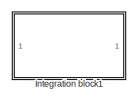
[diagram: root canvas - part 1/4, top right region]
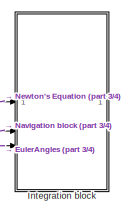
[diagram: root canvas - part 2/4, middle right region]
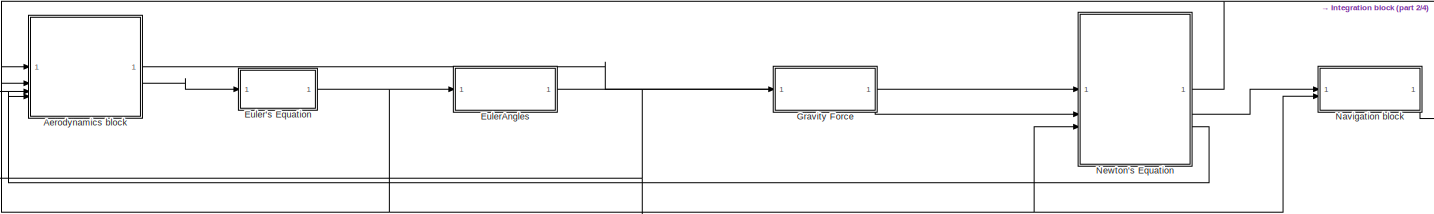
[diagram: root canvas - part 3/4, full width, middle band]
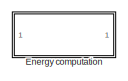
[diagram: root canvas - part 4/4, bottom right region]
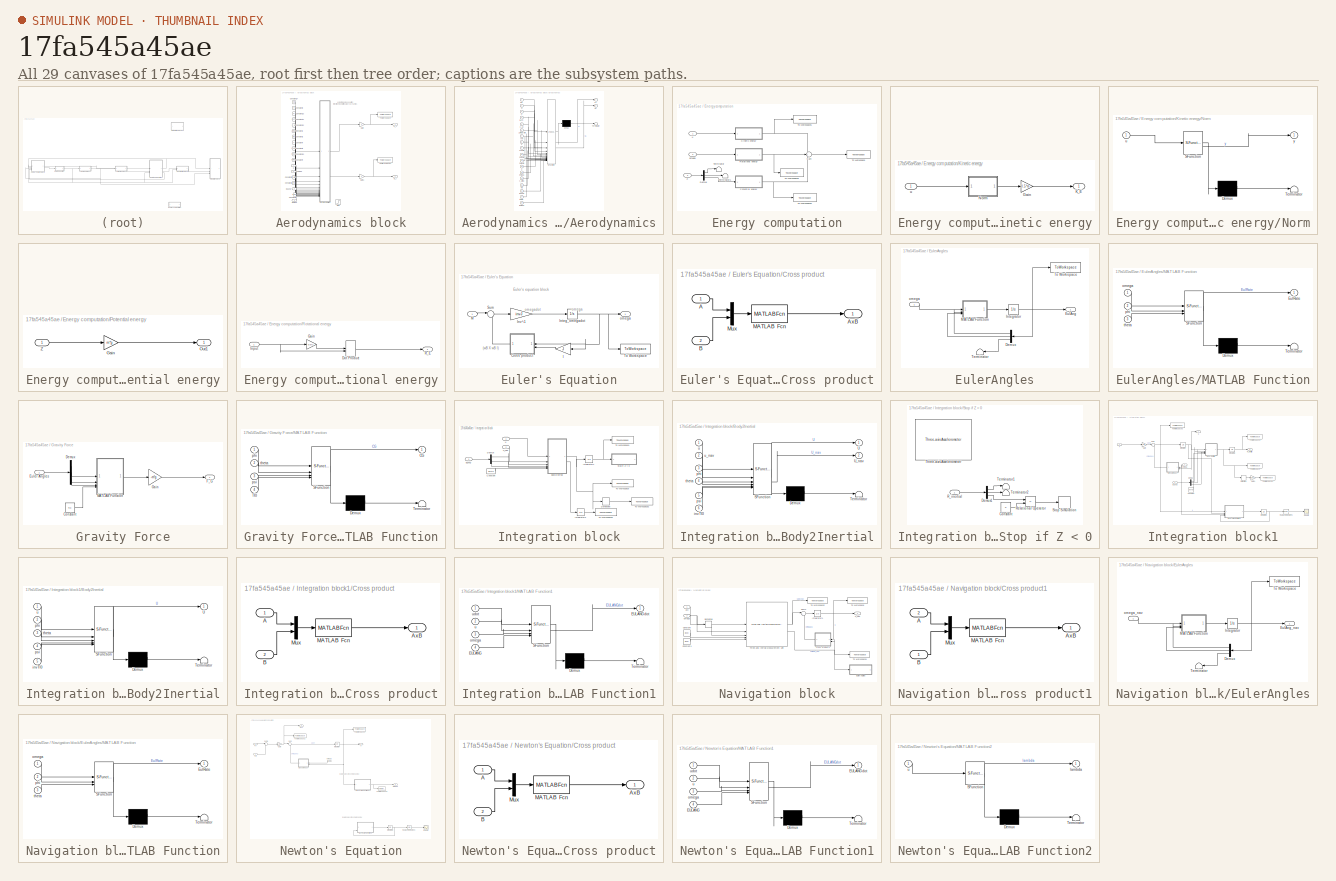
[diagram: thumbnail index - all 29 canvases of the model, root first then tree order]
MODEL slx_17fa545a45ae
KIND model
CONFIG AbsTol = auto
CONFIG EnableMultiTasking = off
CONFIG FixedStep = dt
CONFIG MaxStep = auto
CONFIG MinStep = auto
CONFIG RelTol = 1e-3
CONFIG SampleTimeConstraint = Unconstrained
CONFIG SolverName = ode4
CONFIG StartTime = 0.0
CONFIG StopTime = t
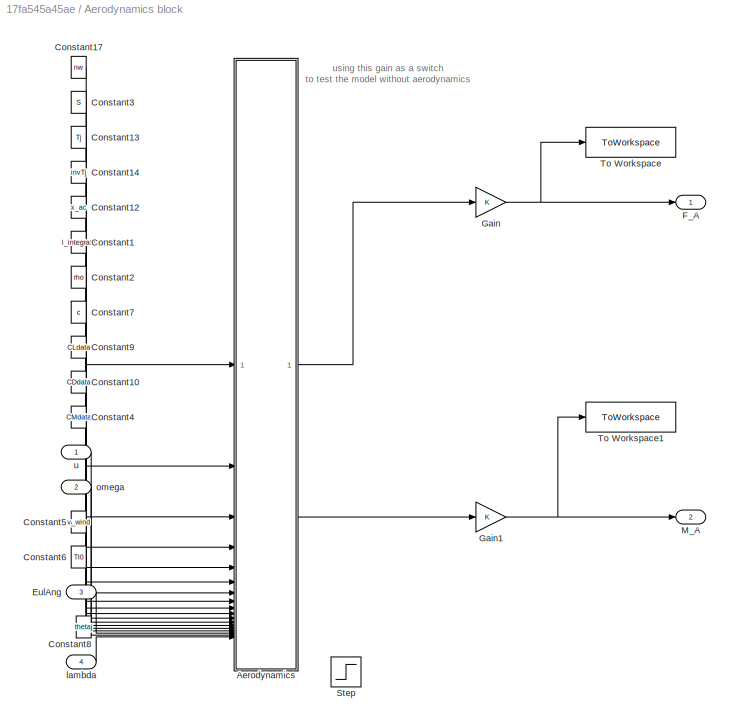
BLOCK [SubSystem] Aerodynamics block
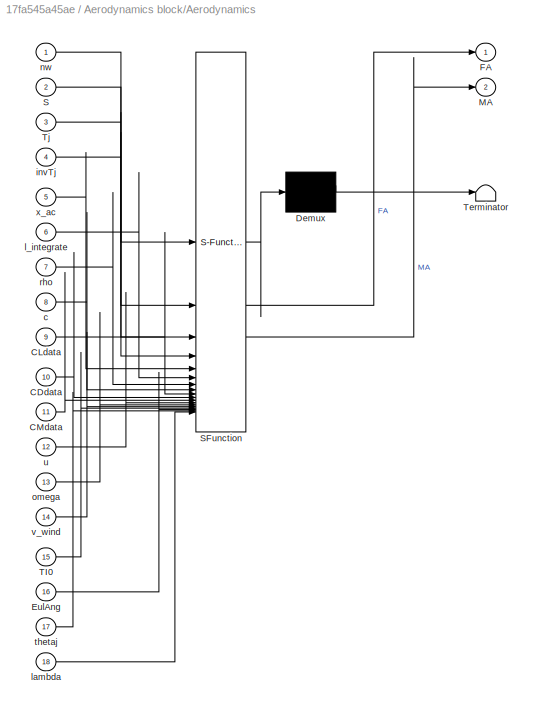
BLOCK [SubSystem] Aerodynamics block/Aerodynamics
  ErrorFcn = Stateflow.Translate.translate
  LibrarySourceBlock = simulink/User-Defined\nFunctions/MATLAB Function
  PermitHierarchicalResolution = ExplicitOnly
  SFBlockType = MATLAB Function
  TreatAsAtomicUnit = on
BLOCK [Demux] Aerodynamics block/Aerodynamics/ Demux 
  Outputs = 1
BLOCK [S-Function] Aerodynamics block/Aerodynamics/ SFunction 
  EnableBusSupport = on
  FunctionName = sf_sfun
  PortCounts = [18 3]
  SFcnIsStateOwnerBlock = off
  SFunctionDeploymentMode = off
  Tag = Stateflow S-Function 1
BLOCK [Terminator] Aerodynamics block/Aerodynamics/ Terminator 
BLOCK [Inport] Aerodynamics block/Aerodynamics/CDdata
  Port = 10
BLOCK [Inport] Aerodynamics block/Aerodynamics/CLdata
  Port = 9
BLOCK [Inport] Aerodynamics block/Aerodynamics/CMdata
  Port = 11
BLOCK [Inport] Aerodynamics block/Aerodynamics/EulAng
  Port = 16
BLOCK [Outport] Aerodynamics block/Aerodynamics/FA
BLOCK [Outport] Aerodynamics block/Aerodynamics/MA
  Port = 2
BLOCK [Inport] Aerodynamics block/Aerodynamics/S
  Port = 2
BLOCK [Inport] Aerodynamics block/Aerodynamics/TI0
  Port = 15
BLOCK [Inport] Aerodynamics block/Aerodynamics/Tj
  Port = 3
BLOCK [Inport] Aerodynamics block/Aerodynamics/c
  Port = 8
BLOCK [Inport] Aerodynamics block/Aerodynamics/invTj
  Port = 4
BLOCK [Inport] Aerodynamics block/Aerodynamics/l_integrate
  Port = 6
BLOCK [Inport] Aerodynamics block/Aerodynamics/lambda
  Port = 18
BLOCK [Inport] Aerodynamics block/Aerodynamics/nw
BLOCK [Inport] Aerodynamics block/Aerodynamics/omega
  Port = 13
BLOCK [Inport] Aerodynamics block/Aerodynamics/rho
  Port = 7
BLOCK [Inport] Aerodynamics block/Aerodynamics/thetaj
  Port = 17
BLOCK [Inport] Aerodynamics block/Aerodynamics/u
  Port = 12
BLOCK [Inport] Aerodynamics block/Aerodynamics/v_wind
  Port = 14
BLOCK [Inport] Aerodynamics block/Aerodynamics/x_ac
  Port = 5
BLOCK [Constant] Aerodynamics block/Constant1
  Value = l_integrate
BLOCK [Constant] Aerodynamics block/Constant10
  Value = CDdata
BLOCK [Constant] Aerodynamics block/Constant12
  Value = x_ac
BLOCK [Constant] Aerodynamics block/Constant13
  Value = Tj
BLOCK [Constant] Aerodynamics block/Constant14
  Value = invTj
BLOCK [Constant] Aerodynamics block/Constant17
  Value = nw
BLOCK [Constant] Aerodynamics block/Constant2
  Value = rho
BLOCK [Constant] Aerodynamics block/Constant3
  Value = S
BLOCK [Constant] Aerodynamics block/Constant4
  Value = CMdata
BLOCK [Constant] Aerodynamics block/Constant5
  Value = v_wind
BLOCK [Constant] Aerodynamics block/Constant6
  Value = TI0
BLOCK [Constant] Aerodynamics block/Constant7
  Value = c
BLOCK [Constant] Aerodynamics block/Constant8
  Value = thetaj
BLOCK [Constant] Aerodynamics block/Constant9
  Value = CLdata
BLOCK [Inport] Aerodynamics block/EulAng
  Port = 3
BLOCK [Outport] Aerodynamics block/F_A
BLOCK [Gain] Aerodynamics block/Gain
BLOCK [Gain] Aerodynamics block/Gain1
BLOCK [Outport] Aerodynamics block/M_A
  Port = 2
BLOCK [Step] Aerodynamics block/Step
  After = delta_theta
  Commented = on
  SampleTime = 0
  Time = t_action
  VectorParams1D = off
BLOCK [ToWorkspace] Aerodynamics block/To Workspace
  FixptAsFi = on
  MaxDataPoints = inf
  SampleTime = -1
  VariableName = FA
BLOCK [ToWorkspace] Aerodynamics block/To Workspace1
  FixptAsFi = on
  MaxDataPoints = inf
  SampleTime = -1
  VariableName = MA
BLOCK [Inport] Aerodynamics block/lambda
  Port = 4
BLOCK [Inport] Aerodynamics block/omega
  Port = 2
BLOCK [Inport] Aerodynamics block/u
BLOCK [SubSystem] Energy computation
  Commented = on
BLOCK [Demux] Energy computation/Demux
  Outputs = 3
BLOCK [SubSystem] Energy computation/Kinetic energy
BLOCK [Gain] Energy computation/Kinetic energy/Gain
  Gain = 0.5*m
BLOCK [Outport] Energy computation/Kinetic energy/K_E
BLOCK [SubSystem] Energy computation/Kinetic energy/Norm
  ErrorFcn = Stateflow.Translate.translate
  LibrarySourceBlock = simulink/User-Defined\nFunctions/MATLAB Function
  PermitHierarchicalResolution = ExplicitOnly
  SFBlockType = MATLAB Function
  TreatAsAtomicUnit = on
BLOCK [Demux] Energy computation/Kinetic energy/Norm/ Demux 
  Outputs = 1
BLOCK [S-Function] Energy computation/Kinetic energy/Norm/ SFunction 
  EnableBusSupport = on
  FunctionName = sf_sfun
  PortCounts = [1 2]
  SFcnIsStateOwnerBlock = off
  SFunctionDeploymentMode = off
  Tag = Stateflow S-Function 5
BLOCK [Terminator] Energy computation/Kinetic energy/Norm/ Terminator 
BLOCK [Inport] Energy computation/Kinetic energy/Norm/u
BLOCK [Outport] Energy computation/Kinetic energy/Norm/y
BLOCK [Inport] Energy computation/Kinetic energy/u
BLOCK [SubSystem] Energy computation/Potential energy
BLOCK [Gain] Energy computation/Potential energy/Gain
  Gain = m*g
BLOCK [Outport] Energy computation/Potential energy/Out1
BLOCK [Inport] Energy computation/Potential energy/Z
BLOCK [SubSystem] Energy computation/Rotational energy
BLOCK [DotProduct] Energy computation/Rotational energy/Dot Product
  OutDataTypeStr = Inherit: Inherit via internal rule
BLOCK [Gain] Energy computation/Rotational energy/Gain
  Gain = 0.5*J
  Multiplication = Matrix(u*K)
BLOCK [Inport] Energy computation/Rotational energy/Input
BLOCK [Outport] Energy computation/Rotational energy/R_E
BLOCK [Sum] Energy computation/Sum
  Inputs = +++
BLOCK [Terminator] Energy computation/Terminator
BLOCK [Terminator] Energy computation/Terminator1
BLOCK [ToWorkspace] Energy computation/To Workspace
  FixptAsFi = on
  MaxDataPoints = inf
  SampleTime = -1
  SaveFormat = Timeseries
  VariableName = E
BLOCK [ToWorkspace] Energy computation/To Workspace1
  FixptAsFi = on
  MaxDataPoints = inf
  SampleTime = -1
  SaveFormat = Timeseries
  VariableName = K_E
BLOCK [ToWorkspace] Energy computation/To Workspace2
  FixptAsFi = on
  MaxDataPoints = inf
  SampleTime = -1
  SaveFormat = Timeseries
  VariableName = P_E
BLOCK [ToWorkspace] Energy computation/To Workspace3
  FixptAsFi = on
  MaxDataPoints = inf
  SampleTime = -1
  SaveFormat = Timeseries
  VariableName = R_E
BLOCK [Inport] Energy computation/Z
  Port = 3
BLOCK [Inport] Energy computation/omega
  Port = 2
BLOCK [Inport] Energy computation/u
BLOCK [SubSystem] Euler's Equation
BLOCK [SubSystem] Euler's Equation/Cross product
BLOCK [Inport] Euler's Equation/Cross product/A
BLOCK [Outport] Euler's Equation/Cross product/AxB
  VectorParamsAs1DForOutWhenUnconnected = off
BLOCK [Inport] Euler's Equation/Cross product/B
  Port = 2
BLOCK [MATLABFcn] Euler's Equation/Cross product/MATLAB Fcn
  MATLABFcn = cross(u(1:3),u(4:6))
BLOCK [Mux] Euler's Equation/Cross product/Mux
  DisplayOption = bar
  Inputs = 2
BLOCK [Gain] Euler's Equation/I
  Gain = J
  Multiplication = Matrix(K*u)
BLOCK [Integrator] Euler's Equation/Integ_omegadot
  InitialCondition = omega0
BLOCK [Gain] Euler's Equation/Inv^-1
  Gain = invJ
  Multiplication = Matrix(K*u) (u vector)
BLOCK [Inport] Euler's Equation/M
BLOCK [Sum] Euler's Equation/Sum
  Inputs = |+-
BLOCK [ToWorkspace] Euler's Equation/To Workspace
  FixptAsFi = on
  MaxDataPoints = inf
  SampleTime = -1
  VariableName = omega
BLOCK [Outport] Euler's Equation/omega
  VectorParamsAs1DForOutWhenUnconnected = off
BLOCK [SubSystem] EulerAngles
BLOCK [Demux] EulerAngles/Demux
  Outputs = 3
BLOCK [Outport] EulerAngles/EulAng
BLOCK [Integrator] EulerAngles/Integrator
  InitialCondition = Eul0
BLOCK [SubSystem] EulerAngles/MATLAB Function
  ErrorFcn = Stateflow.Translate.translate
  LibrarySourceBlock = simulink/User-Defined\nFunctions/MATLAB Function
  PermitHierarchicalResolution = ExplicitOnly
  SFBlockType = MATLAB Function
  TreatAsAtomicUnit = on
BLOCK [Demux] EulerAngles/MATLAB Function/ Demux 
  Outputs = 1
BLOCK [S-Function] EulerAngles/MATLAB Function/ SFunction 
  EnableBusSupport = on
  FunctionName = sf_sfun
  PortCounts = [3 2]
  SFcnIsStateOwnerBlock = off
  SFunctionDeploymentMode = off
  Tag = Stateflow S-Function 4
BLOCK [Terminator] EulerAngles/MATLAB Function/ Terminator 
BLOCK [Outport] EulerAngles/MATLAB Function/EulRate
BLOCK [Inport] EulerAngles/MATLAB Function/omega
BLOCK [Inport] EulerAngles/MATLAB Function/phi
  Port = 2
BLOCK [Inport] EulerAngles/MATLAB Function/theta
  Port = 3
BLOCK [Terminator] EulerAngles/Terminator
BLOCK [ToWorkspace] EulerAngles/To Workspace
  FixptAsFi = on
  MaxDataPoints = inf
  SampleTime = -1
  VariableName = EulAng
BLOCK [Inport] EulerAngles/omega
BLOCK [SubSystem] Gravity Force
BLOCK [Constant] Gravity Force/Constant
  Value = TI0
BLOCK [Demux] Gravity Force/Demux
  Outputs = 3
BLOCK [Inport] Gravity Force/Euler Angles
BLOCK [Outport] Gravity Force/F_G
BLOCK [Gain] Gravity Force/Gain
  Gain = -m*g
BLOCK [SubSystem] Gravity Force/MATLAB Function
  ErrorFcn = Stateflow.Translate.translate
  LibrarySourceBlock = simulink/User-Defined\nFunctions/MATLAB Function
  PermitHierarchicalResolution = ExplicitOnly
  SFBlockType = MATLAB Function
  TreatAsAtomicUnit = on
BLOCK [Demux] Gravity Force/MATLAB Function/ Demux 
  Outputs = 1
BLOCK [S-Function] Gravity Force/MATLAB Function/ SFunction 
  EnableBusSupport = on
  FunctionName = sf_sfun
  PortCounts = [4 2]
  SFcnIsStateOwnerBlock = off
  SFunctionDeploymentMode = off
  Tag = Stateflow S-Function 2
BLOCK [Terminator] Gravity Force/MATLAB Function/ Terminator 
BLOCK [Outport] Gravity Force/MATLAB Function/CG
BLOCK [Inport] Gravity Force/MATLAB Function/TI0
  Port = 4
BLOCK [Inport] Gravity Force/MATLAB Function/phi
BLOCK [Inport] Gravity Force/MATLAB Function/psi
  Port = 3
BLOCK [Inport] Gravity Force/MATLAB Function/theta
  Port = 2
BLOCK [SubSystem] Integration block
BLOCK [SubSystem] Integration block/Body2Inertial
  ErrorFcn = Stateflow.Translate.translate
  LibrarySourceBlock = simulink/User-Defined\nFunctions/MATLAB Function
  PermitHierarchicalResolution = ExplicitOnly
  SFBlockType = MATLAB Function
  TreatAsAtomicUnit = on
BLOCK [Demux] Integration block/Body2Inertial/ Demux 
  Outputs = 1
BLOCK [S-Function] Integration block/Body2Inertial/ SFunction 
  EnableBusSupport = on
  FunctionName = sf_sfun
  PortCounts = [6 3]
  SFcnIsStateOwnerBlock = off
  SFunctionDeploymentMode = off
  Tag = Stateflow S-Function 3
BLOCK [Terminator] Integration block/Body2Inertial/ Terminator 
BLOCK [Outport] Integration block/Body2Inertial/U
BLOCK [Outport] Integration block/Body2Inertial/U_nav
  Port = 2
BLOCK [Inport] Integration block/Body2Inertial/invTI0
  Port = 6
BLOCK [Inport] Integration block/Body2Inertial/phi
  Port = 3
BLOCK [Inport] Integration block/Body2Inertial/psi
  Port = 5
BLOCK [Inport] Integration block/Body2Inertial/theta
  Port = 4
BLOCK [Inport] Integration block/Body2Inertial/u
BLOCK [Inport] Integration block/Body2Inertial/u_nav
  Port = 2
BLOCK [Constant] Integration block/Constant
  Value = invTI0
BLOCK [Demux] Integration block/Demux
  Outputs = 3
BLOCK [Derivative] Integration block/Derivative
BLOCK [Inport] Integration block/EulAng
  Port = 3
BLOCK [Integrator] Integration block/Integrator1
  InitialCondition = R_pos0
BLOCK [Integrator] Integration block/Integrator2
  InitialCondition = R_pos0
BLOCK [SubSystem] Integration block/Stop if Z < 0
BLOCK [Constant] Integration block/Stop if Z < 0/Constant
  Value = 0
BLOCK [Demux] Integration block/Stop if Z < 0/Demux1
  Outputs = 3
BLOCK [Inport] Integration block/Stop if Z < 0/R_inertial
BLOCK [RelationalOperator] Integration block/Stop if Z < 0/Relational Operator
  InputSameDT = off
  Operator = <=
  OutDataTypeStr = boolean
  RndMeth = Simplest
BLOCK [Stop] Integration block/Stop if Z < 0/Stop Simulation
BLOCK [Terminator] Integration block/Stop if Z < 0/Terminator1
BLOCK [Terminator] Integration block/Stop if Z < 0/Terminator2
BLOCK [Reference] Integration block/Stop if Z < 0/Three-axis Accelerometer  REF=aerolibnav/Three-axis Accelerometer
  SourceBlock = aerolibnav/Three-axis Accelerometer
  SourceType = Three-axis Accelerometer
BLOCK [ToWorkspace] Integration block/To Workspace
  FixptAsFi = on
  MaxDataPoints = inf
  SampleTime = -1
  VariableName = U
BLOCK [ToWorkspace] Integration block/To Workspace1
  FixptAsFi = on
  MaxDataPoints = inf
  SampleTime = -1
  VariableName = R_inertial
BLOCK [ToWorkspace] Integration block/To Workspace2
  FixptAsFi = on
  MaxDataPoints = inf
  SampleTime = -1
  SaveFormat = Timeseries
  VariableName = Udot
BLOCK [ToWorkspace] Integration block/To Workspace3
  FixptAsFi = on
  MaxDataPoints = inf
  SampleTime = -1
  VariableName = R_nav
BLOCK [Inport] Integration block/u
BLOCK [Inport] Integration block/u_nav
  Port = 2
BLOCK [SubSystem] Integration block1
  Commented = on
BLOCK [SubSystem] Integration block1/Body2Inertial
  ErrorFcn = Stateflow.Translate.translate
  LibrarySourceBlock = simulink/User-Defined\nFunctions/MATLAB Function
  PermitHierarchicalResolution = ExplicitOnly
  SFBlockType = MATLAB Function
  TreatAsAtomicUnit = on
BLOCK [Demux] Integration block1/Body2Inertial/ Demux 
  Outputs = 1
BLOCK [S-Function] Integration block1/Body2Inertial/ SFunction 
  EnableBusSupport = on
  FunctionName = sf_sfun
  PortCounts = [5 2]
  SFcnIsStateOwnerBlock = off
  SFunctionDeploymentMode = off
  Tag = Stateflow S-Function 6
BLOCK [Terminator] Integration block1/Body2Inertial/ Terminator 
BLOCK [Outport] Integration block1/Body2Inertial/U
BLOCK [Inport] Integration block1/Body2Inertial/invTI0
  Port = 5
BLOCK [Inport] Integration block1/Body2Inertial/phi
  Port = 2
BLOCK [Inport] Integration block1/Body2Inertial/psi
  Port = 4
BLOCK [Inport] Integration block1/Body2Inertial/theta
  Port = 3
BLOCK [Inport] Integration block1/Body2Inertial/u
BLOCK [Constant] Integration block1/Constant
  Value = invTI0
BLOCK [SubSystem] Integration block1/Cross product
BLOCK [Inport] Integration block1/Cross product/A
BLOCK [Outport] Integration block1/Cross product/AxB
  VectorParamsAs1DForOutWhenUnconnected = off
BLOCK [Inport] Integration block1/Cross product/B
  Port = 2
BLOCK [MATLABFcn] Integration block1/Cross product/MATLAB Fcn
  MATLABFcn = cross(u(1:3),u(4:6))
BLOCK [Mux] Integration block1/Cross product/Mux
  DisplayOption = bar
  Inputs = 2
BLOCK [Demux] Integration block1/Demux
  Outputs = 3
BLOCK [Derivative] Integration block1/Derivative
BLOCK [Scope] Integration block1/EulANg
  Commented = on
  Floating = off
  NumInputPorts = 1
  ScopeSpecificationString = Simulink.scopes.TimeScopeBlockCfg('CurrentConfiguration', extmgr.ConfigurationSet(extmgr.Configuration('Core','General UI',true),extmgr.Configuration('Core','Source UI',true),extmgr.Configuration('Sources','WiredSimulink',true,'DataLoggingVariableName','ScopeData1'),extmgr.Configuration('Visuals','Time Domain',true,'SerializedDisplays',{struct('MinYLimReal','-844.77435','MaxYLimReal','1128.0117','...<+1645ch>
BLOCK [Inport] Integration block1/EulAng
  Port = 2
BLOCK [Inport] Integration block1/F
BLOCK [Gain] Integration block1/Gain
  Gain = 1./m
BLOCK [Gain] Integration block1/Gain1
  Gain = 1/9.81
BLOCK [Integrator] Integration block1/Integrator
  InitialCondition = u0
BLOCK [Integrator] Integration block1/Integrator1
  InitialCondition = R_pos0
BLOCK [Integrator] Integration block1/Integrator3
  Commented = on
  InitialCondition = [PHI0; THETA0; PSI0]
BLOCK [SubSystem] Integration block1/MATLAB Function1
  Commented = on
  ErrorFcn = Stateflow.Translate.translate
  LibrarySourceBlock = simulink/User-Defined\nFunctions/MATLAB Function
  PermitHierarchicalResolution = ExplicitOnly
  SFBlockType = MATLAB Function
  TreatAsAtomicUnit = on
BLOCK [Demux] Integration block1/MATLAB Function1/ Demux 
  Outputs = 1
BLOCK [S-Function] Integration block1/MATLAB Function1/ SFunction 
  EnableBusSupport = on
  FunctionName = sf_sfun
  PortCounts = [4 2]
  SFcnIsStateOwnerBlock = off
  SFunctionDeploymentMode = off
  Tag = Stateflow S-Function 8
BLOCK [Terminator] Integration block1/MATLAB Function1/ Terminator 
BLOCK [Inport] Integration block1/MATLAB Function1/EULANG
  Port = 4
BLOCK [Outport] Integration block1/MATLAB Function1/EULANGdot
BLOCK [Inport] Integration block1/MATLAB Function1/omega
  Port = 3
BLOCK [Inport] Integration block1/MATLAB Function1/u
  Port = 2
BLOCK [Inport] Integration block1/MATLAB Function1/udot
BLOCK [Outport] Integration block1/R_inertial
  Port = 2
BLOCK [Reference] Integration block1/Radians to Degrees  REF=simulink_extras/Transformations/Radians
to Degrees
  Commented = on
  SourceBlock = simulink_extras/Transformations/Radians\nto Degrees
  SourceType = RadiansToDegrees
BLOCK [Sum] Integration block1/Sum
  Inputs = |+-
BLOCK [ToWorkspace] Integration block1/To Workspace
  FixptAsFi = on
  MaxDataPoints = inf
  SampleTime = -1
  VariableName = U
BLOCK [ToWorkspace] Integration block1/To Workspace1
  FixptAsFi = on
  MaxDataPoints = inf
  SampleTime = -1
  VariableName = R_inertial
BLOCK [ToWorkspace] Integration block1/To Workspace2
  FixptAsFi = on
  MaxDataPoints = inf
  SampleTime = -1
  SaveFormat = Timeseries
  VariableName = Udot
BLOCK [ToWorkspace] Integration block1/To Workspace3
  FixptAsFi = on
  MaxDataPoints = inf
  SampleTime = -1
  VariableName = u
BLOCK [Inport] Integration block1/omega
  Port = 3
BLOCK [Outport] Integration block1/u
BLOCK [SubSystem] Navigation block
BLOCK [Constant] Navigation block/Constant
  Value = [0 0 0]
BLOCK [Constant] Navigation block/Constant1
  Value = [0 0 0]
BLOCK [SubSystem] Navigation block/Cross product1
BLOCK [Inport] Navigation block/Cross product1/A
  Port = 2
BLOCK [Outport] Navigation block/Cross product1/AxB
  VectorParamsAs1DForOutWhenUnconnected = off
BLOCK [Inport] Navigation block/Cross product1/B
BLOCK [MATLABFcn] Navigation block/Cross product1/MATLAB Fcn
  MATLABFcn = cross(u(1:3),u(4:6))
BLOCK [Mux] Navigation block/Cross product1/Mux
  DisplayOption = bar
  Inputs = 2
BLOCK [Derivative] Navigation block/Derivative
BLOCK [SubSystem] Navigation block/EulerAngles
BLOCK [Demux] Navigation block/EulerAngles/Demux
  Outputs = 3
BLOCK [Outport] Navigation block/EulerAngles/EulAng_nav
BLOCK [Integrator] Navigation block/EulerAngles/Integrator
  InitialCondition = Eul0
BLOCK [SubSystem] Navigation block/EulerAngles/MATLAB Function
  ErrorFcn = Stateflow.Translate.translate
  LibrarySourceBlock = simulink/User-Defined\nFunctions/MATLAB Function
  PermitHierarchicalResolution = ExplicitOnly
  SFBlockType = MATLAB Function
  TreatAsAtomicUnit = on
BLOCK [Demux] Navigation block/EulerAngles/MATLAB Function/ Demux 
  Outputs = 1
BLOCK [S-Function] Navigation block/EulerAngles/MATLAB Function/ SFunction 
  EnableBusSupport = on
  FunctionName = sf_sfun
  PortCounts = [3 2]
  SFcnIsStateOwnerBlock = off
  SFunctionDeploymentMode = off
  Tag = Stateflow S-Function 10
BLOCK [Terminator] Navigation block/EulerAngles/MATLAB Function/ Terminator 
BLOCK [Outport] Navigation block/EulerAngles/MATLAB Function/EulRate
BLOCK [Inport] Navigation block/EulerAngles/MATLAB Function/omega
BLOCK [Inport] Navigation block/EulerAngles/MATLAB Function/phi
  Port = 2
BLOCK [Inport] Navigation block/EulerAngles/MATLAB Function/theta
  Port = 3
BLOCK [Terminator] Navigation block/EulerAngles/Terminator
BLOCK [ToWorkspace] Navigation block/EulerAngles/To Workspace
  FixptAsFi = on
  MaxDataPoints = inf
  SampleTime = -1
  VariableName = EulAng_nav
BLOCK [Inport] Navigation block/EulerAngles/omega_nav
BLOCK [Integrator] Navigation block/Integrator1
  InitialCondition = u0
BLOCK [Sum] Navigation block/Sum2
  Inputs = |+-
BLOCK [Reference] Navigation block/Three-axis Inertial Measurement Unit  REF=aerolibnav/Three-axis Inertial
Measurement Unit
  SourceBlock = aerolibnav/Three-axis Inertial\nMeasurement Unit
  SourceType = Three-axis Inertial Measurement Unit
BLOCK [ToWorkspace] Navigation block/To Workspace
  FixptAsFi = on
  MaxDataPoints = inf
  SampleTime = -1
  VariableName = u_nav
BLOCK [ToWorkspace] Navigation block/To Workspace1
  FixptAsFi = on
  MaxDataPoints = inf
  SampleTime = -1
  VariableName = omega_nav
BLOCK [ToWorkspace] Navigation block/To Workspace2
  FixptAsFi = on
  MaxDataPoints = inf
  SampleTime = -1
  VariableName = acc_nav
BLOCK [Inport] Navigation block/acc
BLOCK [Inport] Navigation block/omega
  Port = 2
BLOCK [Outport] Navigation block/u_nav
BLOCK [SubSystem] Newton's Equation
BLOCK [SubSystem] Newton's Equation/Cross product
BLOCK [Inport] Newton's Equation/Cross product/A
BLOCK [Outport] Newton's Equation/Cross product/AxB
  VectorParamsAs1DForOutWhenUnconnected = off
BLOCK [Inport] Newton's Equation/Cross product/B
  Port = 2
BLOCK [MATLABFcn] Newton's Equation/Cross product/MATLAB Fcn
  MATLABFcn = cross(u(1:3),u(4:6))
BLOCK [Mux] Newton's Equation/Cross product/Mux
  DisplayOption = bar
  Inputs = 2
BLOCK [Scope] Newton's Equation/EulANg
  Commented = on
  Floating = off
  NumInputPorts = 1
  ScopeSpecificationString = Simulink.scopes.TimeScopeBlockCfg('CurrentConfiguration', extmgr.ConfigurationSet(extmgr.Configuration('Core','General UI',true),extmgr.Configuration('Core','Source UI',true),extmgr.Configuration('Sources','WiredSimulink',true,'DataLoggingVariableName','ScopeData1'),extmgr.Configuration('Visuals','Time Domain',true,'SerializedDisplays',{struct('MinYLimReal','-844.77435','MaxYLimReal','1128.0117','...<+1645ch>
BLOCK [Inport] Newton's Equation/FA
BLOCK [Inport] Newton's Equation/FG
  Port = 2
BLOCK [Gain] Newton's Equation/Gain
  Gain = 1./m
BLOCK [Integrator] Newton's Equation/Integrator
  InitialCondition = u0
BLOCK [Integrator] Newton's Equation/Integrator3
  Commented = on
  InitialCondition = [PHI0; THETA0; PSI0]
BLOCK [SubSystem] Newton's Equation/MATLAB Function1
  Commented = on
  ErrorFcn = Stateflow.Translate.translate
  LibrarySourceBlock = simulink/User-Defined\nFunctions/MATLAB Function
  PermitHierarchicalResolution = ExplicitOnly
  SFBlockType = MATLAB Function
  TreatAsAtomicUnit = on
BLOCK [Demux] Newton's Equation/MATLAB Function1/ Demux 
  Outputs = 1
BLOCK [S-Function] Newton's Equation/MATLAB Function1/ SFunction 
  EnableBusSupport = on
  FunctionName = sf_sfun
  PortCounts = [4 2]
  SFcnIsStateOwnerBlock = off
  SFunctionDeploymentMode = off
  Tag = Stateflow S-Function 7
BLOCK [Terminator] Newton's Equation/MATLAB Function1/ Terminator 
BLOCK [Inport] Newton's Equation/MATLAB Function1/EULANG
  Port = 4
BLOCK [Outport] Newton's Equation/MATLAB Function1/EULANGdot
BLOCK [Inport] Newton's Equation/MATLAB Function1/omega
  Port = 3
BLOCK [Inport] Newton's Equation/MATLAB Function1/u
  Port = 2
BLOCK [Inport] Newton's Equation/MATLAB Function1/udot
BLOCK [SubSystem] Newton's Equation/MATLAB Function2
  ErrorFcn = Stateflow.Translate.translate
  LibrarySourceBlock = simulink/User-Defined\nFunctions/MATLAB Function
  PermitHierarchicalResolution = ExplicitOnly
  SFBlockType = MATLAB Function
  TreatAsAtomicUnit = on
BLOCK [Demux] Newton's Equation/MATLAB Function2/ Demux 
  Outputs = 1
BLOCK [S-Function] Newton's Equation/MATLAB Function2/ SFunction 
  EnableBusSupport = on
  FunctionName = sf_sfun
  PortCounts = [1 2]
  SFcnIsStateOwnerBlock = off
  SFunctionDeploymentMode = off
  Tag = Stateflow S-Function 9
BLOCK [Terminator] Newton's Equation/MATLAB Function2/ Terminator 
BLOCK [Outport] Newton's Equation/MATLAB Function2/lambda
BLOCK [Inport] Newton's Equation/MATLAB Function2/u
BLOCK [Reference] Newton's Equation/Radians to Degrees  REF=simulink_extras/Transformations/Radians
to Degrees
  Commented = on
  SourceBlock = simulink_extras/Transformations/Radians\nto Degrees
  SourceType = RadiansToDegrees
BLOCK [Sum] Newton's Equation/Sum
  Inputs = |+-
BLOCK [Sum] Newton's Equation/Sum1
  Inputs = |++
BLOCK [ToWorkspace] Newton's Equation/To Workspace1
  FixptAsFi = on
  MaxDataPoints = inf
  SampleTime = -1
  VariableName = acc
BLOCK [ToWorkspace] Newton's Equation/To Workspace2
  FixptAsFi = on
  MaxDataPoints = inf
  SampleTime = -1
  VariableName = lambda
BLOCK [ToWorkspace] Newton's Equation/To Workspace3
  FixptAsFi = on
  MaxDataPoints = inf
  SampleTime = -1
  VariableName = u
BLOCK [Outport] Newton's Equation/acc
  Port = 2
BLOCK [Outport] Newton's Equation/lambda
  Port = 3
BLOCK [Inport] Newton's Equation/omega
  Port = 3
BLOCK [Outport] Newton's Equation/u
ANNOTATION Aerodynamics block: using this gain as a switch to test the model without aerodynamics
ANNOTATION Euler's Equation: omegadot
ANNOTATION Euler's Equation: Euler's equation block
ANNOTATION Euler's Equation: (wB X wB I)
ANNOTATION Euler's Equation: omega
ANNOTATION Newton's Equation: Euler angles of boomerang disk
LINE Aerodynamics block/Aerodynamics:1 -> Aerodynamics block/Gain:1
LINE Aerodynamics block/Aerodynamics:2 -> Aerodynamics block/Gain1:1
LINE Aerodynamics block/Constant10:1 -> Aerodynamics block/Aerodynamics:10
LINE Aerodynamics block/Constant12:1 -> Aerodynamics block/Aerodynamics:5
LINE Aerodynamics block/Constant13:1 -> Aerodynamics block/Aerodynamics:3
LINE Aerodynamics block/Constant14:1 -> Aerodynamics block/Aerodynamics:4
LINE Aerodynamics block/Constant17:1 -> Aerodynamics block/Aerodynamics:1
LINE Aerodynamics block/Constant1:1 -> Aerodynamics block/Aerodynamics:6
LINE Aerodynamics block/Constant2:1 -> Aerodynamics block/Aerodynamics:7
LINE Aerodynamics block/Constant3:1 -> Aerodynamics block/Aerodynamics:2
LINE Aerodynamics block/Constant4:1 -> Aerodynamics block/Aerodynamics:11
LINE Aerodynamics block/Constant5:1 -> Aerodynamics block/Aerodynamics:14
LINE Aerodynamics block/Constant6:1 -> Aerodynamics block/Aerodynamics:15
LINE Aerodynamics block/Constant7:1 -> Aerodynamics block/Aerodynamics:8
LINE Aerodynamics block/Constant8:1 -> Aerodynamics block/Aerodynamics:17
LINE Aerodynamics block/Constant9:1 -> Aerodynamics block/Aerodynamics:9
LINE Aerodynamics block/EulAng:1 -> Aerodynamics block/Aerodynamics:16
NET Aerodynamics block/Gain1:1 -> Aerodynamics block/M_A:1, Aerodynamics block/To Workspace1:1
NET Aerodynamics block/Gain:1 -> Aerodynamics block/F_A:1, Aerodynamics block/To Workspace:1
LINE Aerodynamics block/lambda:1 -> Aerodynamics block/Aerodynamics:18
LINE Aerodynamics block/omega:1 -> Aerodynamics block/Aerodynamics:13
LINE Aerodynamics block/u:1 -> Aerodynamics block/Aerodynamics:12
LINE Aerodynamics block:1 -> Newton's Equation:1
LINE Aerodynamics block:2 -> Euler's Equation:1
LINE Energy computation/Demux:1 -> Energy computation/Terminator:1
LINE Energy computation/Demux:2 -> Energy computation/Terminator1:1
LINE Energy computation/Demux:3 -> Energy computation/Potential energy:1
LINE Energy computation/Kinetic energy/Gain:1 -> Energy computation/Kinetic energy/K_E:1
LINE Energy computation/Kinetic energy/Norm:1 -> Energy computation/Kinetic energy/Gain:1
LINE Energy computation/Kinetic energy/u:1 -> Energy computation/Kinetic energy/Norm:1
NET Energy computation/Kinetic energy:1 -> Energy computation/Sum:1, Energy computation/To Workspace1:1
LINE Energy computation/Potential energy/Gain:1 -> Energy computation/Potential energy/Out1:1
LINE Energy computation/Potential energy/Z:1 -> Energy computation/Potential energy/Gain:1
NET Energy computation/Potential energy:1 -> Energy computation/Sum:3, Energy computation/To Workspace2:1
LINE Energy computation/Rotational energy/Dot Product:1 -> Energy computation/Rotational energy/R_E:1
LINE Energy computation/Rotational energy/Gain:1 -> Energy computation/Rotational energy/Dot Product:1
NET Energy computation/Rotational energy/Input:1 -> Energy computation/Rotational energy/Dot Product:2, Energy computation/Rotational energy/Gain:1
NET Energy computation/Rotational energy:1 -> Energy computation/Sum:2, Energy computation/To Workspace3:1
LINE Energy computation/Sum:1 -> Energy computation/To Workspace:1
LINE Energy computation/Z:1 -> Energy computation/Demux:1
LINE Energy computation/omega:1 -> Energy computation/Rotational energy:1
LINE Energy computation/u:1 -> Energy computation/Kinetic energy:1
LINE Euler's Equation/Cross product/A:1 -> Euler's Equation/Cross product/Mux:1
LINE Euler's Equation/Cross product/B:1 -> Euler's Equation/Cross product/Mux:2
LINE Euler's Equation/Cross product/MATLAB Fcn:1 -> Euler's Equation/Cross product/AxB:1
LINE Euler's Equation/Cross product/Mux:1 -> Euler's Equation/Cross product/MATLAB Fcn:1
LINE Euler's Equation/Cross product:1 -> Euler's Equation/Sum:2
LINE Euler's Equation/I:1 -> Euler's Equation/Cross product:2
NET Euler's Equation/Integ_omegadot:1 -> Euler's Equation/Cross product:1, Euler's Equation/I:1, Euler's Equation/To Workspace:1, Euler's Equation/omega:1
LINE Euler's Equation/Inv^-1:1 -> Euler's Equation/Integ_omegadot:1
LINE Euler's Equation/M:1 -> Euler's Equation/Sum:1
LINE Euler's Equation/Sum:1 -> Euler's Equation/Inv^-1:1
NET Euler's Equation:1 -> Aerodynamics block:2, EulerAngles:1, Navigation block:2, Newton's Equation:3
LINE EulerAngles/Demux:1 -> EulerAngles/MATLAB Function:2
LINE EulerAngles/Demux:2 -> EulerAngles/MATLAB Function:3
LINE EulerAngles/Demux:3 -> EulerAngles/Terminator:1
NET EulerAngles/Integrator:1 -> EulerAngles/Demux:1, EulerAngles/EulAng:1, EulerAngles/To Workspace:1
LINE EulerAngles/MATLAB Function:1 -> EulerAngles/Integrator:1
LINE EulerAngles/omega:1 -> EulerAngles/MATLAB Function:1
NET EulerAngles:1 -> Aerodynamics block:3, Gravity Force:1, Integration block:3
LINE Gravity Force/Constant:1 -> Gravity Force/MATLAB Function:4
LINE Gravity Force/Demux:1 -> Gravity Force/MATLAB Function:1
LINE Gravity Force/Demux:2 -> Gravity Force/MATLAB Function:2
LINE Gravity Force/Demux:3 -> Gravity Force/MATLAB Function:3
LINE Gravity Force/Euler Angles:1 -> Gravity Force/Demux:1
LINE Gravity Force/Gain:1 -> Gravity Force/F_G:1
LINE Gravity Force/MATLAB Function:1 -> Gravity Force/Gain:1
LINE Gravity Force:1 -> Newton's Equation:2
NET Integration block/Body2Inertial:1 -> Integration block/Derivative:1, Integration block/Integrator1:1, Integration block/To Workspace:1
LINE Integration block/Body2Inertial:2 -> Integration block/Integrator2:1
LINE Integration block/Constant:1 -> Integration block/Body2Inertial:6
LINE Integration block/Demux:1 -> Integration block/Body2Inertial:3
LINE Integration block/Demux:2 -> Integration block/Body2Inertial:4
LINE Integration block/Demux:3 -> Integration block/Body2Inertial:5
LINE Integration block/Derivative:1 -> Integration block/To Workspace2:1
LINE Integration block/EulAng:1 -> Integration block/Demux:1
NET Integration block/Integrator1:1 -> Integration block/Stop if Z < 0:1, Integration block/To Workspace1:1
LINE Integration block/Integrator2:1 -> Integration block/To Workspace3:1
LINE Integration block/Stop if Z < 0/Constant:1 -> Integration block/Stop if Z < 0/Relational Operator:2
LINE Integration block/Stop if Z < 0/Demux1:1 -> Integration block/Stop if Z < 0/Terminator1:1
LINE Integration block/Stop if Z < 0/Demux1:2 -> Integration block/Stop if Z < 0/Terminator2:1
LINE Integration block/Stop if Z < 0/Demux1:3 -> Integration block/Stop if Z < 0/Relational Operator:1
LINE Integration block/Stop if Z < 0/R_inertial:1 -> Integration block/Stop if Z < 0/Demux1:1
LINE Integration block/Stop if Z < 0/Relational Operator:1 -> Integration block/Stop if Z < 0/Stop Simulation:1
LINE Integration block/u:1 -> Integration block/Body2Inertial:1
LINE Integration block/u_nav:1 -> Integration block/Body2Inertial:2
NET Integration block1/Body2Inertial:1 -> Integration block1/Derivative:1, Integration block1/Integrator1:1, Integration block1/To Workspace:1
LINE Integration block1/Constant:1 -> Integration block1/Body2Inertial:5
LINE Integration block1/Cross product/A:1 -> Integration block1/Cross product/Mux:1
LINE Integration block1/Cross product/B:1 -> Integration block1/Cross product/Mux:2
LINE Integration block1/Cross product/MATLAB Fcn:1 -> Integration block1/Cross product/AxB:1
LINE Integration block1/Cross product/Mux:1 -> Integration block1/Cross product/MATLAB Fcn:1
LINE Integration block1/Cross product:1 -> Integration block1/Sum:2
LINE Integration block1/Demux:1 -> Integration block1/Body2Inertial:2
LINE Integration block1/Demux:2 -> Integration block1/Body2Inertial:3
LINE Integration block1/Demux:3 -> Integration block1/Body2Inertial:4
LINE Integration block1/Derivative:1 -> Integration block1/Gain1:1
LINE Integration block1/EulAng:1 -> Integration block1/Demux:1
LINE Integration block1/F:1 -> Integration block1/Gain:1
LINE Integration block1/Gain1:1 -> Integration block1/To Workspace2:1
LINE Integration block1/Gain:1 -> Integration block1/Sum:1
NET Integration block1/Integrator1:1 -> Integration block1/R_inertial:1, Integration block1/To Workspace1:1
NET Integration block1/Integrator3:1 -> Integration block1/MATLAB Function1:4, Integration block1/Radians to Degrees:1
NET Integration block1/Integrator:1 -> Integration block1/Body2Inertial:1, Integration block1/Cross product:2, Integration block1/MATLAB Function1:2, Integration block1/u:1
LINE Integration block1/MATLAB Function1:1 -> Integration block1/Integrator3:1
LINE Integration block1/Radians to Degrees:1 -> Integration block1/EulANg:1
NET Integration block1/Sum:1 -> Integration block1/Integrator:1, Integration block1/MATLAB Function1:1, Integration block1/To Workspace3:1
NET Integration block1/omega:1 -> Integration block1/Cross product:1, Integration block1/MATLAB Function1:3
LINE Navigation block/Constant1:1 -> Navigation block/Three-axis Inertial Measurement Unit:5
LINE Navigation block/Constant:1 -> Navigation block/Three-axis Inertial Measurement Unit:4
LINE Navigation block/Cross product1/A:1 -> Navigation block/Cross product1/Mux:1
LINE Navigation block/Cross product1/B:1 -> Navigation block/Cross product1/Mux:2
LINE Navigation block/Cross product1/MATLAB Fcn:1 -> Navigation block/Cross product1/AxB:1
LINE Navigation block/Cross product1/Mux:1 -> Navigation block/Cross product1/MATLAB Fcn:1
LINE Navigation block/Cross product1:1 -> Navigation block/Sum2:2
LINE Navigation block/Derivative:1 -> Navigation block/Three-axis Inertial Measurement Unit:3
LINE Navigation block/EulerAngles/Demux:1 -> Navigation block/EulerAngles/MATLAB Function:2
LINE Navigation block/EulerAngles/Demux:2 -> Navigation block/EulerAngles/MATLAB Function:3
LINE Navigation block/EulerAngles/Demux:3 -> Navigation block/EulerAngles/Terminator:1
NET Navigation block/EulerAngles/Integrator:1 -> Navigation block/EulerAngles/Demux:1, Navigation block/EulerAngles/EulAng_nav:1, Navigation block/EulerAngles/To Workspace:1
LINE Navigation block/EulerAngles/MATLAB Function:1 -> Navigation block/EulerAngles/Integrator:1
LINE Navigation block/EulerAngles/omega_nav:1 -> Navigation block/EulerAngles/MATLAB Function:1
NET Navigation block/Integrator1:1 -> Navigation block/Cross product1:1, Navigation block/To Workspace:1, Navigation block/u_nav:1
LINE Navigation block/Sum2:1 -> Navigation block/Integrator1:1
NET Navigation block/Three-axis Inertial Measurement Unit:1 -> Navigation block/Sum2:1, Navigation block/To Workspace2:1
NET Navigation block/Three-axis Inertial Measurement Unit:2 -> Navigation block/Cross product1:2, Navigation block/EulerAngles:1, Navigation block/To Workspace1:1
LINE Navigation block/acc:1 -> Navigation block/Three-axis Inertial Measurement Unit:1
NET Navigation block/omega:1 -> Navigation block/Derivative:1, Navigation block/Three-axis Inertial Measurement Unit:2
LINE Navigation block:1 -> Integration block:2
LINE Newton's Equation/Cross product/A:1 -> Newton's Equation/Cross product/Mux:1
LINE Newton's Equation/Cross product/B:1 -> Newton's Equation/Cross product/Mux:2
LINE Newton's Equation/Cross product/MATLAB Fcn:1 -> Newton's Equation/Cross product/AxB:1
LINE Newton's Equation/Cross product/Mux:1 -> Newton's Equation/Cross product/MATLAB Fcn:1
LINE Newton's Equation/Cross product:1 -> Newton's Equation/Sum:2
LINE Newton's Equation/FA:1 -> Newton's Equation/Sum1:1
LINE Newton's Equation/FG:1 -> Newton's Equation/Sum1:2
NET Newton's Equation/Gain:1 -> Newton's Equation/Sum:1, Newton's Equation/To Workspace1:1, Newton's Equation/acc:1
NET Newton's Equation/Integrator3:1 -> Newton's Equation/MATLAB Function1:4, Newton's Equation/Radians to Degrees:1
NET Newton's Equation/Integrator:1 -> Newton's Equation/Cross product:2, Newton's Equation/MATLAB Function2:1, Newton's Equation/To Workspace3:1, Newton's Equation/u:1
LINE Newton's Equation/MATLAB Function1:1 -> Newton's Equation/Integrator3:1
NET Newton's Equation/MATLAB Function2:1 -> Newton's Equation/To Workspace2:1, Newton's Equation/lambda:1
LINE Newton's Equation/Radians to Degrees:1 -> Newton's Equation/EulANg:1
LINE Newton's Equation/Sum1:1 -> Newton's Equation/Gain:1
LINE Newton's Equation/Sum:1 -> Newton's Equation/Integrator:1
LINE Newton's Equation/omega:1 -> Newton's Equation/Cross product:1
NET Newton's Equation:1 -> Aerodynamics block:1, Integration block:1
LINE Newton's Equation:2 -> Navigation block:1
LINE Newton's Equation:3 -> Aerodynamics block:4
note: NET lines group one-source signal fan-out (src -> all destinations, sorted); 1:1 wires keep LINE
CHART Integration block1/Body2Inertial states=1 transitions=1
  STATE_LABEL 'eML_blk_kernel()'
  STATE_LABEL 'SCRIPT:\nfunction U = fcn(u, phi, theta, psi, invTI0)\nR01 = [\n    1, 0, 0;\n    0, cos(phi), sin(phi);\n    0, -sin(phi), cos(phi)\n    ];\nR02 = [\n    cos(theta), 0, -sin(theta);\n    0, 1, 0;\n    sin(theta), 0, cos(theta)\n];\nR03 = [\n    cos(psi), sin(psi), 0;\n    -sin(psi), cos(psi), 0;\n    0, 0, 1\n];\nT0 = R01*R02*R03;\ninvT0 = transpose(T0);\nU = invTI0*invT0*u;\n'
CHART Newton's Equation/MATLAB Function1 states=1 transitions=1
  STATE_LABEL 'eML_blk_kernel()'
  STATE_LABEL 'SCRIPT:\nfunction EULANGdot = fcn(udot, u, omega, EULANG)\nudotx = udot(1);\nudoty = udot(2);\n\nux = u(1);\nuy = u(2);\n\np = omega(1);\nq = omega(2);\nr = omega(3);\n\nPHI = EULANG(1);\nTHETA = EULANG(2);\n\nrn = r + (udoty*ux - udotx*uy)/(ux^2 + uy^2);\nlambda = -tan(uy/ux);\n\nPHIdot = (p*cos(lambda) - q*sin(lambda)) + (p*sin(lambda) + q*cos(lambda))*sin(PHI)*tan(THETA) + ...\n    rn*cos(PHI)*tan(THETA);\nTHETAdo...<+188ch>'
CHART Integration block1/MATLAB Function1 states=1 transitions=1
  STATE_LABEL 'eML_blk_kernel()'
  STATE_LABEL 'SCRIPT:\nfunction EULANGdot = fcn(udot, u, omega, EULANG)\nudotx = udot(1);\nudoty = udot(2);\n\nux = u(1);\nuy = u(2);\n\np = omega(1);\nq = omega(2);\nr = omega(3);\n\nPHI = EULANG(1);\nTHETA = EULANG(2);\n\nrn = r + (udoty*ux - udotx*uy)/(ux^2 + uy^2);\nlambda = -tan(uy/ux);\n\nPHIdot = (p*cos(lambda) - q*sin(lambda)) + (p*sin(lambda) + q*cos(lambda))*sin(PHI)*tan(THETA) + ...\n    rn*cos(PHI)*tan(THETA);\nTHETAdo...<+188ch>'
CHART Newton's Equation/MATLAB Function2 states=1 transitions=1
  STATE_LABEL 'eML_blk_kernel()'
  STATE_LABEL 'SCRIPT:\nfunction lambda  = fcn(u)\n% udotx = udot(1);\n% udoty = udot(2);\n\nux = u(1);\nuy = u(2);\n\n% p = omega(1);\n% q = omega(2);\n% r = omega(3);\n% \n% PHI = EULANG(1);\n% THETA = EULANG(2);\n% \n% rn = r + (udoty*ux - udotx*uy)/(ux^2 + uy^2);\n\nlambda = -atan2(uy,ux);\n\n% PHIdot = (p*cos(lambda) - q*sin(lambda)) + (p*sin(lambda) + q*cos(lambda))*sin(PHI)*tan(THETA) + ...\n%     rn*cos(PHI)*tan(THETA);\n% T...<+197ch>'
CHART Navigation block/EulerAngles/MATLAB Function states=1 transitions=1
  STATE_LABEL 'eML_blk_kernel()'
  STATE_LABEL 'SCRIPT:\nfunction EulRate = fcn(omega, phi, theta)\n\nphidot = omega(1) + omega(2)*sin(phi)*tan(theta) + omega(3)*cos(phi)*tan(theta);\nthetadot = omega(2)*cos(phi) - omega(3)*sin(phi);\npsidot = omega(2)*sin(phi)/cos(theta) + omega(3)*cos(phi)/cos(theta);\n\nEulRate = [phidot; thetadot; psidot];\n'
CHART Aerodynamics block/Aerodynamics states=1 transitions=1
  STATE_LABEL 'eML_blk_kernel()'
  STATE_LABEL 'SCRIPT:\nfunction [FA, MA] = fcn(nw, S, Tj, invTj, x_ac, l_integrate, rho, c, CLdata, CDdata, CMdata,u, omega, v_wind, TI0, EulAng, thetaj, lambda)\n\nphi = EulAng(1);\ntheta = EulAng(2);\npsi = EulAng(3);\ngamma = deg2rad(90);\n\nR01 = [1, 0, 0; 0, cos(phi), sin(phi); 0, -sin(phi), cos(phi)];\nR02 = [cos(theta), 0, -sin(theta); 0, 1, 0; sin(theta), 0, cos(theta)];\nR03 = [cos(psi), sin(psi), 0; -sin(psi), ...<+2066ch>'
CHART Gravity Force/MATLAB Function states=1 transitions=1
  STATE_LABEL 'eML_blk_kernel()'
  STATE_LABEL 'SCRIPT:\nfunction CG = fcn(phi, theta, psi, TI0)\nR01 = [\n    1, 0, 0;\n    0, cos(phi), sin(phi);\n    0, -sin(phi), cos(phi)\n    ];\nR02 = [\n    cos(theta), 0, -sin(theta);\n    0, 1, 0;\n    sin(theta), 0, cos(theta)\n];\nR03 = [\n    cos(psi), sin(psi), 0;\n    -sin(psi), cos(psi), 0;\n    0, 0, 1\n];\nT0 = R01*R02*R03;\n\nCG = T0*TI0*[0; 0; 1];\n'
CHART Integration block/Body2Inertial states=1 transitions=1
  STATE_LABEL 'eML_blk_kernel()'
  STATE_LABEL 'SCRIPT:\nfunction [U, U_nav] = fcn(u, u_nav, phi, theta, psi, invTI0)\nR01 = [\n    1, 0, 0;\n    0, cos(phi), sin(phi);\n    0, -sin(phi), cos(phi)\n    ];\nR02 = [\n    cos(theta), 0, -sin(theta);\n    0, 1, 0;\n    sin(theta), 0, cos(theta)\n];\nR03 = [\n    cos(psi), sin(psi), 0;\n    -sin(psi), cos(psi), 0;\n    0, 0, 1\n];\nT0 = R01*R02*R03;\ninvT0 = transpose(T0);\n\nU = invTI0*invT0*u;\nU_nav = invTI0*invT0*u_...<+4ch>'
CHART EulerAngles/MATLAB Function states=1 transitions=1
  STATE_LABEL 'eML_blk_kernel()'
  STATE_LABEL 'SCRIPT:\nfunction EulRate = fcn(omega, phi, theta)\n\nphidot = omega(1) + omega(2)*sin(phi)*tan(theta) + omega(3)*cos(phi)*tan(theta);\nthetadot = omega(2)*cos(phi) - omega(3)*sin(phi);\npsidot = omega(2)*sin(phi)/cos(theta) + omega(3)*cos(phi)/cos(theta);\n\nEulRate = [phidot; thetadot; psidot];\n'
CHART Energy computation/Kinetic energy/Norm states=1 transitions=1
  STATE_LABEL 'eML_blk_kernel()'
  STATE_LABEL 'SCRIPT:\nfunction y = fcn(u)\n\ny = norm(u)^2;\n'
CHART  states=0 transitions=0
CHART  states=0 transitions=0
CHART  states=0 transitions=0
CHART  states=0 transitions=0
CHART  states=0 transitions=0
CHART  states=0 transitions=0
CHART  states=0 transitions=0
CHART  states=0 transitions=0
CHART  states=0 transitions=0
CHART  states=0 transitions=0
